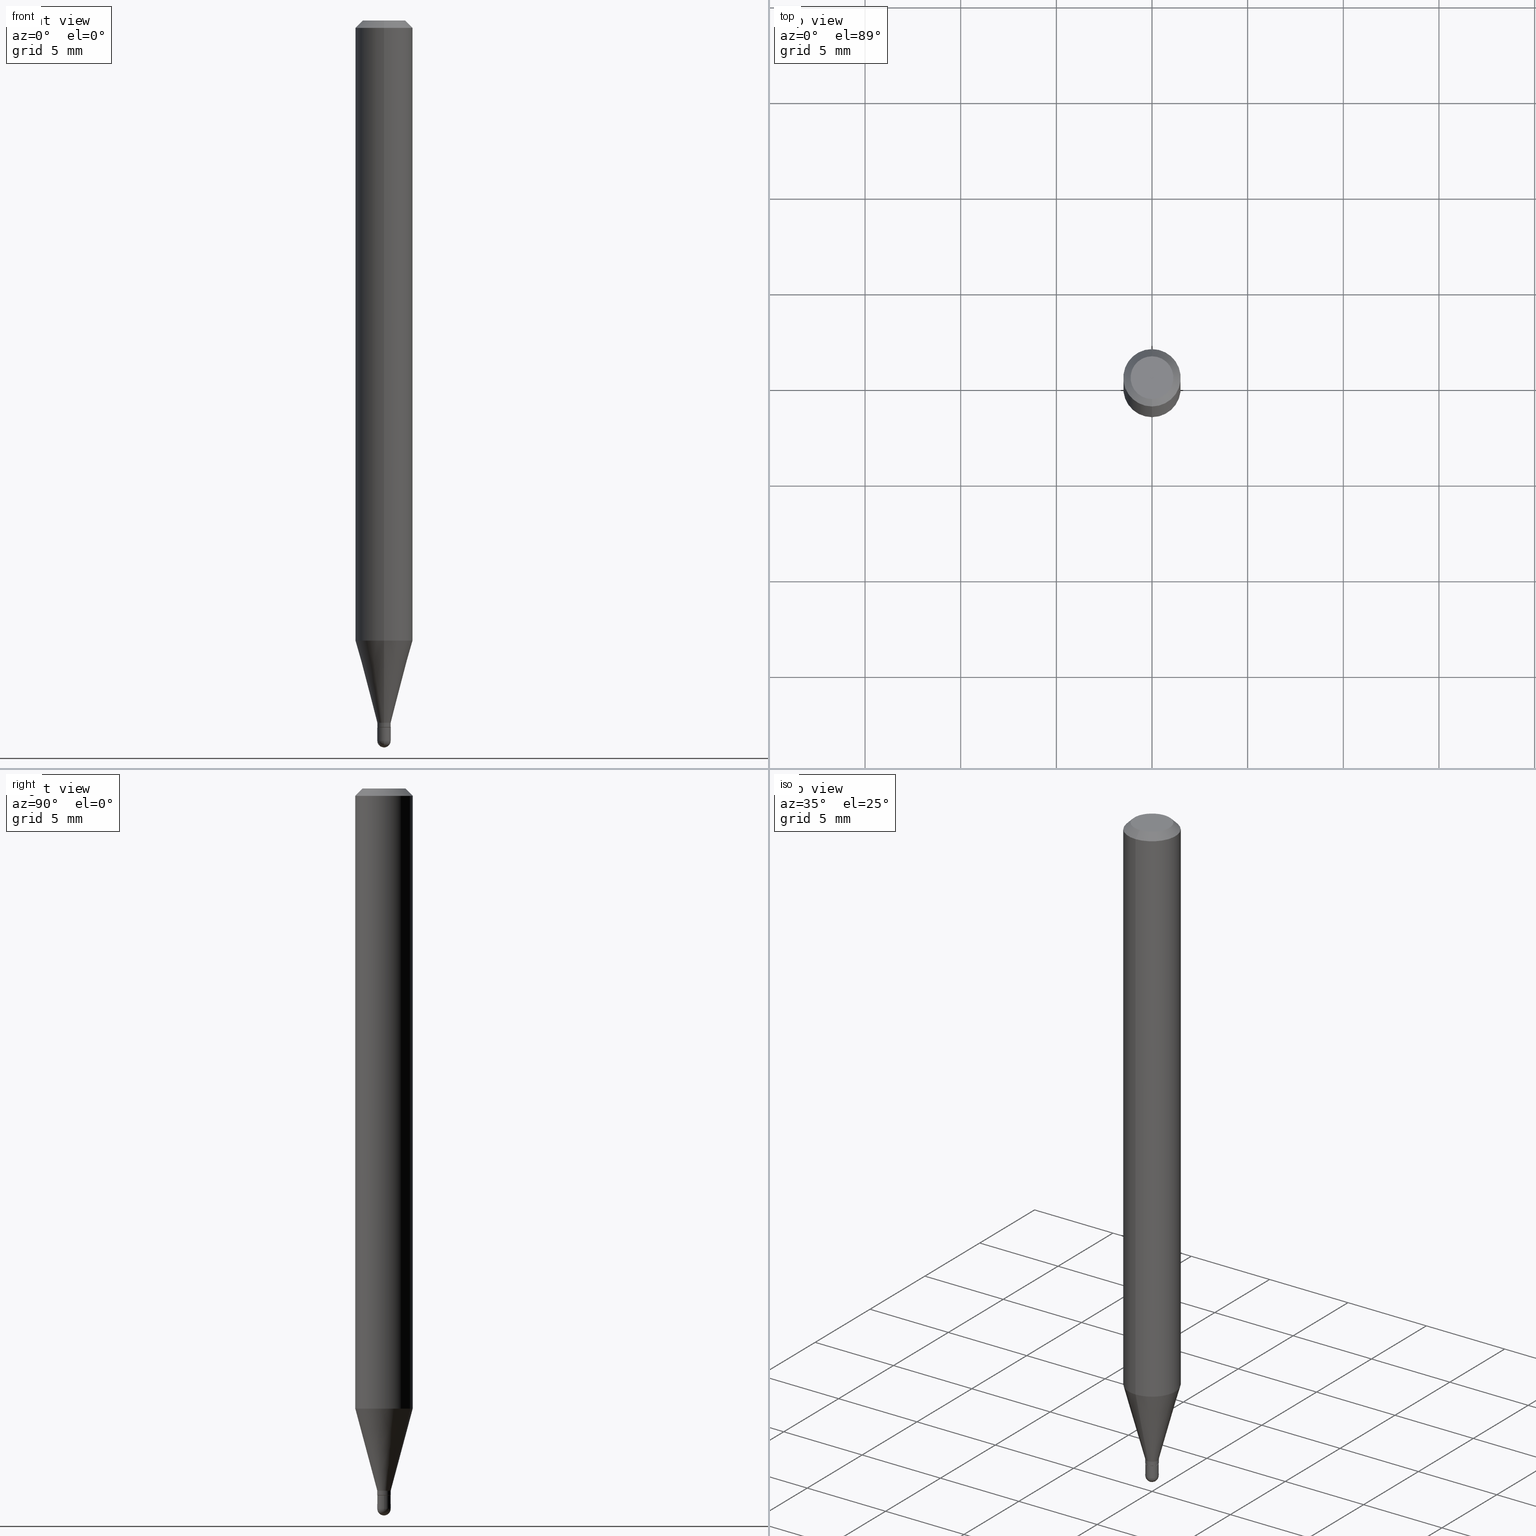
[diagram: canonical four-view strip — front | top / right | iso, engineering-drawing reading convention]
A machine part, canonical four-view strip (front | top / right | iso — engineering-drawing reading convention). The complete STEP part file that produces these views, byte-faithful:
ISO-10303-21;
HEADER;
FILE_DESCRIPTION (( 'STEP AP203' ),
    '1' );
FILE_NAME ('01902.STEP',
    '2024-03-07T19:42:29',
    ( '' ),
    ( '' ),
    'SwSTEP 2.0',
    'SolidWorks 2023',
    '' );
FILE_SCHEMA (( 'CONFIG_CONTROL_DESIGN' ));
ENDSEC;

DATA;
#1 = APPROVAL_ROLE ( '' ) ;
#2 = DIRECTION ( 'NONE',  ( -2.445422202875732962E-29, 3.491548077434707223E-15, 1.000000000000000000 ) ) ;
#3 = ADVANCED_FACE ( 'NONE', ( #165 ), #317, .T. ) ;
#4 = DIRECTION ( 'NONE',  ( -6.982962677686265922E-15, -1.000000000000000000, 0.000000000000000000 ) ) ;
#5 = APPROVAL_STATUS ( 'not_yet_approved' ) ;
#6 = VECTOR ( 'NONE', #117, 39.37007874015748143 ) ;
#7 = ORGANIZATION ( 'UNSPECIFIED', 'UNSPECIFIED', '' ) ;
#8 = DIRECTION ( 'NONE',  ( -2.445422202875732962E-29, 3.491548077434707223E-15, 1.000000000000000000 ) ) ;
#9 = COORDINATED_UNIVERSAL_TIME_OFFSET ( 5, 0, .BEHIND. ) ;
#10 = EDGE_CURVE ( 'NONE', #102, #141, #52, .T. ) ;
#11 = LINE ( 'NONE', #92, #301 ) ;
#12 = CYLINDRICAL_SURFACE ( 'NONE', #282, 0.05904999999999999832 ) ;
#13 = VERTEX_POINT ( 'NONE', #400 ) ;
#14 = VERTEX_POINT ( 'NONE', #50 ) ;
#15 = AXIS2_PLACEMENT_3D ( 'NONE', #177, #326, #291 ) ;
#16 = DIRECTION ( 'NONE',  ( -2.445422202875732962E-29, 3.491548077434707223E-15, 1.000000000000000000 ) ) ;
#17 = VERTEX_POINT ( 'NONE', #466 ) ;
#18 = ORIENTED_EDGE ( 'NONE', *, *, #446, .F. ) ;
#19 = ORIENTED_EDGE ( 'NONE', *, *, #304, .F. ) ;
#20 = VECTOR ( 'NONE', #279, 39.37007874015748143 ) ;
#21 = ORIENTED_EDGE ( 'NONE', *, *, #191, .T. ) ;
#22 = FACE_OUTER_BOUND ( 'NONE', #115, .T. ) ;
#23 = ORIENTED_EDGE ( 'NONE', *, *, #457, .T. ) ;
#24 = DIRECTION ( 'NONE',  ( -6.982962677686265922E-15, -1.000000000000000000, 0.000000000000000000 ) ) ;
#25 = CARTESIAN_POINT ( 'NONE',  ( -9.636488495203459207E-17, -0.01380000000000496801, -1.445099999999999829 ) ) ;
#26 = AXIS2_PLACEMENT_3D ( 'NONE', #417, #299, #338 ) ;
#27 = ADVANCED_FACE ( 'NONE', ( #316 ), #228, .T. ) ;
#28 = FACE_OUTER_BOUND ( 'NONE', #369, .T. ) ;
#29 = ADVANCED_FACE ( 'NONE', ( #167 ), #84, .T. ) ;
#30 = LINE ( 'NONE', #420, #162 ) ;
#31 = ADVANCED_FACE ( 'NONE', ( #170 ), #479, .F. ) ;
#32 = AXIS2_PLACEMENT_3D ( 'NONE', #245, #403, #210 ) ;
#33 = CIRCLE ( 'NONE', #189, 0.01379999999999992344 ) ;
#34 = DIRECTION ( 'NONE',  ( 6.982962677686265922E-15, 1.000000000000000000, -3.505890868245046092E-15 ) ) ;
#35 = ORIENTED_EDGE ( 'NONE', *, *, #380, .T. ) ;
#36 = CARTESIAN_POINT ( 'NONE',  ( -0.01379999999999999977, 9.805489753489382399E-17, -6.788130424551770621E-31 ) ) ;
#37 = PRODUCT ( '01902', '01902', '', ( #85 ) ) ;
#38 = CARTESIAN_POINT ( 'NONE',  ( 3.557600220743616919E-29, -5.079504143052011974E-15, -1.454800000000000093 ) ) ;
#39 = FACE_OUTER_BOUND ( 'NONE', #105, .T. ) ;
#40 = AXIS2_PLACEMENT_3D ( 'NONE', #390, #225, #226 ) ;
#41 = ORIENTED_EDGE ( 'NONE', *, *, #507, .F. ) ;
#42 = COORDINATED_UNIVERSAL_TIME_OFFSET ( 5, 0, .BEHIND. ) ;
#43 = CIRCLE ( 'NONE', #376, 0.01379999999999992344 ) ;
#44 = CARTESIAN_POINT ( 'NONE',  ( 3.557600220743616919E-29, -5.079504143052011974E-15, -1.454800000000000093 ) ) ;
#45 = ORIENTED_EDGE ( 'NONE', *, *, #497, .F. ) ;
#46 = CC_DESIGN_DATE_AND_TIME_ASSIGNMENT ( #325, #89, ( #216 ) ) ;
#47 = APPROVAL_DATE_TIME ( #166, #496 ) ;
#48 = DIRECTION ( 'NONE',  ( -2.445422202875732962E-29, 3.491548077434707223E-15, 1.000000000000000000 ) ) ;
#49 = COORDINATED_UNIVERSAL_TIME_OFFSET ( 5, 0, .BEHIND. ) ;
#50 = CARTESIAN_POINT ( 'NONE',  ( 9.805489753492849690E-17, 0.01379999999999479907, -1.454300000000000148 ) ) ;
#51 = DIRECTION ( 'NONE',  ( -2.445422202875733242E-29, 3.491548077434707223E-15, 1.000000000000000000 ) ) ;
#52 = CIRCLE ( 'NONE', #464, 0.01379999999999986446 ) ;
#53 = LOCAL_TIME ( 14, 42, 29.00000000000000000, #94 ) ;
#54 = DIRECTION ( 'NONE',  ( -6.982962677686265133E-15, -1.000000000000000000, 0.000000000000000000 ) ) ;
#55 = ORIENTED_EDGE ( 'NONE', *, *, #456, .T. ) ;
#56 = ORIENTED_EDGE ( 'NONE', *, *, #310, .T. ) ;
#57 = PERSON_AND_ORGANIZATION_ROLE ( 'design_owner' ) ;
#58 = ORIENTED_EDGE ( 'NONE', *, *, #311, .T. ) ;
#59 = CARTESIAN_POINT ( 'NONE',  ( 3.557600220743616919E-29, -5.079504143052011974E-15, -1.454800000000000093 ) ) ;
#60 = EDGE_LOOP ( 'NONE', ( #365, #368, #487, #295 ) ) ;
#61 = ORIENTED_EDGE ( 'NONE', *, *, #371, .T. ) ;
#62 = DIRECTION ( 'NONE',  ( -6.982962677686265922E-15, -1.000000000000000000, 3.491548077434707617E-15 ) ) ;
#63 = EDGE_CURVE ( 'NONE', #508, #141, #335, .T. ) ;
#64 = CIRCLE ( 'NONE', #339, 0.05904999999999999832 ) ;
#65 = AXIS2_PLACEMENT_3D ( 'NONE', #214, #494, #484 ) ;
#66 = CARTESIAN_POINT ( 'NONE',  ( 3.623738281929160025E-29, -5.177112801150018502E-15, -1.482299999999999951 ) ) ;
#67 = ORIENTED_EDGE ( 'NONE', *, *, #500, .T. ) ;
#68 = AXIS2_PLACEMENT_3D ( 'NONE', #387, #159, #265 ) ;
#69 = ORIENTED_EDGE ( 'NONE', *, *, #63, .T. ) ;
#70 = CARTESIAN_POINT ( 'NONE',  ( 3.623738281929160025E-29, -5.177112801150018502E-15, -1.482299999999999951 ) ) ;
#71 = ORIENTED_EDGE ( 'NONE', *, *, #500, .F. ) ;
#72 = LINE ( 'NONE', #25, #95 ) ;
#73 = EDGE_CURVE ( 'NONE', #508, #444, #349, .T. ) ;
#74 = CC_DESIGN_APPROVAL ( #496, ( #423 ) ) ;
#75 = FACE_OUTER_BOUND ( 'NONE', #149, .T. ) ;
#76 = CC_DESIGN_PERSON_AND_ORGANIZATION_ASSIGNMENT ( #404, #472, ( #150 ) ) ;
#77 = DIRECTION ( 'NONE',  ( -6.982962677686265922E-15, -1.000000000000000000, 3.491548077434707617E-15 ) ) ;
#78 = ADVANCED_FACE ( 'NONE', ( #394 ), #239, .T. ) ;
#79 = AXIS2_PLACEMENT_3D ( 'NONE', #66, #183, #133 ) ;
#80 = CIRCLE ( 'NONE', #119, 0.01329999999999999932 ) ;
#81 = CARTESIAN_POINT ( 'NONE',  ( 3.668133304313604943E-31, -5.237322116152069561E-17, -0.01500000000000002373 ) ) ;
#82 = UNCERTAINTY_MEASURE_WITH_UNIT (LENGTH_MEASURE( 1.000000000000000082E-05 ), #168, 'distance_accuracy_value', 'NONE');
#83 = DIRECTION ( 'NONE',  ( -6.982962677686265922E-15, -1.000000000000000000, 0.000000000000000000 ) ) ;
#84 = CYLINDRICAL_SURFACE ( 'NONE', #236, 0.05904999999999999832 ) ;
#85 = MECHANICAL_CONTEXT ( 'NONE', #101, 'mechanical' ) ;
#86 = CARTESIAN_POINT ( 'NONE',  ( -3.536586717851222218E-16, -0.04404999999999999888, 1.299433897645709742E-16 ) ) ;
#87 = CC_DESIGN_DATE_AND_TIME_ASSIGNMENT ( #202, #437, ( #423 ) ) ;
#88 = AXIS2_PLACEMENT_3D ( 'NONE', #70, #232, #24 ) ;
#89 = DATE_TIME_ROLE ( 'creation_date' ) ;
#90 = VECTOR ( 'NONE', #471, 39.37007874015748143 ) ;
#91 = DIRECTION ( 'NONE',  ( -2.445422202875732962E-29, 3.491548077434707223E-15, 1.000000000000000000 ) ) ;
#92 = CARTESIAN_POINT ( 'NONE',  ( 9.450218385612888028E-17, 0.01329999999999492005, -1.454800000000000093 ) ) ;
#93 = CARTESIAN_POINT ( 'NONE',  ( 3.668133304313604943E-31, -5.237322116152069561E-17, -0.01500000000000002373 ) ) ;
#94 = COORDINATED_UNIVERSAL_TIME_OFFSET ( 5, 0, .BEHIND. ) ;
#95 = VECTOR ( 'NONE', #160, 39.37007874015748143 ) ;
#96 = DIRECTION ( 'NONE',  ( 7.105427357601000281E-15, 1.000000000000000000, 0.000000000000000000 ) ) ;
#97 = LINE ( 'NONE', #372, #463 ) ;
#98 = ORIENTED_EDGE ( 'NONE', *, *, #457, .F. ) ;
#99 = ORIENTED_EDGE ( 'NONE', *, *, #233, .T. ) ;
#100 = EDGE_LOOP ( 'NONE', ( #147, #178, #56, #439 ) ) ;
#101 = APPLICATION_CONTEXT ( 'configuration controlled 3d designs of mechanical parts and assemblies' ) ;
#102 = VERTEX_POINT ( 'NONE', #164 ) ;
#103 = CARTESIAN_POINT ( 'NONE',  ( 3.556377509642178182E-29, -5.077758369013295341E-15, -1.454300000000000148 ) ) ;
#104 = ORIENTED_EDGE ( 'NONE', *, *, #348, .T. ) ;
#105 = EDGE_LOOP ( 'NONE', ( #41, #242, #374, #481 ) ) ;
#106 = CARTESIAN_POINT ( 'NONE',  ( 5.834606941487536772E-46, -8.330590368068735141E-32, -2.385930304642788849E-17 ) ) ;
#107 = CLOSED_SHELL ( 'NONE', ( #346, #286, #137, #289, #475, #143, #29, #488, #416, #260, #78, #231 ) ) ;
#108 = APPROVAL_PERSON_ORGANIZATION ( #345, #496, #440 ) ;
#109 =( LENGTH_UNIT ( ) NAMED_UNIT ( * ) SI_UNIT ( $, .METRE. ) );
#110 = MANIFOLD_SOLID_BREP ( 'Body-Move/Copy2[1]', #309 ) ;
#111 = DIRECTION ( 'NONE',  ( -2.445422202875732962E-29, 3.491548077434707223E-15, 1.000000000000000000 ) ) ;
#112 = DIRECTION ( 'NONE',  ( -2.445422202875732962E-29, 3.491548077434707223E-15, 1.000000000000000000 ) ) ;
#113 = DIRECTION ( 'NONE',  ( -4.851104656540964275E-15, -0.7071067811865500152, -0.7071067811865450192 ) ) ;
#114 = EDGE_LOOP ( 'NONE', ( #45, #486, #322, #146 ) ) ;
#115 = EDGE_LOOP ( 'NONE', ( #61, #58, #211, #229 ) ) ;
#116 = EDGE_LOOP ( 'NONE', ( #427, #290, #453, #361, #302 ) ) ;
#117 = DIRECTION ( 'NONE',  ( -2.445468806185136877E-29, 3.491481338843145188E-15, 1.000000000000000000 ) ) ;
#118 = CONICAL_SURFACE ( 'NONE', #26, 0.05904999999999999832, 0.7853981633974483900 ) ;
#119 = AXIS2_PLACEMENT_3D ( 'NONE', #243, #252, #175 ) ;
#120 = ORIENTED_EDGE ( 'NONE', *, *, #432, .F. ) ;
#121 = CARTESIAN_POINT ( 'NONE',  ( 9.636488495210604561E-17, 0.01379999999999492050, -1.454800000000000093 ) ) ;
#122 = CALENDAR_DATE ( 2024, 7, 3 ) ;
#123 = LINE ( 'NONE', #275, #20 ) ;
#124 = PERSON_AND_ORGANIZATION ( #447, #7 ) ;
#125 = EDGE_LOOP ( 'NONE', ( #120, #378, #104, #251 ) ) ;
#126 = CYLINDRICAL_SURFACE ( 'NONE', #194, 0.01379999999999992344 ) ;
#127 = AXIS2_PLACEMENT_3D ( 'NONE', #344, #91, #161 ) ;
#128 = LOCAL_TIME ( 14, 42, 29.00000000000000000, #480 ) ;
#129 = DATE_AND_TIME ( #122, #281 ) ;
#130 = AXIS2_PLACEMENT_3D ( 'NONE', #59, #333, #54 ) ;
#131 = CARTESIAN_POINT ( 'NONE',  ( 4.195754854663705051E-16, 0.05904999999999994975, -0.01500000000000023016 ) ) ;
#132 = DATE_AND_TIME ( #323, #468 ) ;
#133 = DIRECTION ( 'NONE',  ( -6.982962677686265922E-15, -1.000000000000000000, 0.000000000000000000 ) ) ;
#134 = DIRECTION ( 'NONE',  ( 1.000000000000000000, 0.000000000000000000, 0.000000000000000000 ) ) ;
#135 = CARTESIAN_POINT ( 'NONE',  ( 0.000000000000000000, 0.000000000000000000, 0.000000000000000000 ) ) ;
#136 = EDGE_LOOP ( 'NONE', ( #450, #188, #23, #18 ) ) ;
#137 = ADVANCED_FACE ( 'NONE', ( #203 ), #307, .T. ) ;
#138 = AXIS2_PLACEMENT_3D ( 'NONE', #190, #415, #259 ) ;
#139 = DIRECTION ( 'NONE',  ( 1.000000000000000000, -6.982962677686234367E-15, 0.000000000000000000 ) ) ;
#140 = VERTEX_POINT ( 'NONE', #86 ) ;
#141 = VERTEX_POINT ( 'NONE', #196 ) ;
#142 = ORIENTED_EDGE ( 'NONE', *, *, #10, .F. ) ;
#143 = ADVANCED_FACE ( 'NONE', ( #200 ), #155, .T. ) ;
#144 = EDGE_CURVE ( 'NONE', #492, #14, #300, .T. ) ;
#145 = DIRECTION ( 'NONE',  ( -2.445422202875732962E-29, 3.491548077434707223E-15, 1.000000000000000000 ) ) ;
#146 = ORIENTED_EDGE ( 'NONE', *, *, #465, .F. ) ;
#147 = ORIENTED_EDGE ( 'NONE', *, *, #311, .F. ) ;
#148 = DIRECTION ( 'NONE',  ( -6.982962677686265922E-15, -1.000000000000000000, 0.000000000000000000 ) ) ;
#149 = EDGE_LOOP ( 'NONE', ( #294, #21 ) ) ;
#150 = PRODUCT_DEFINITION_FORMATION_WITH_SPECIFIED_SOURCE ( 'ANY', '', #37, .NOT_KNOWN. ) ;
#151 = DIRECTION ( 'NONE',  ( -6.982962677686265922E-15, -1.000000000000000000, 3.505890868245046092E-15 ) ) ;
#152 = CARTESIAN_POINT ( 'NONE',  ( -9.636488495203469068E-17, -0.01380000000000504781, -1.454300000000000148 ) ) ;
#153 = DIRECTION ( 'NONE',  ( -6.982962677686265922E-15, -1.000000000000000000, 0.000000000000000000 ) ) ;
#154 = EDGE_LOOP ( 'NONE', ( #421, #370, #215, #493 ) ) ;
#155 = CONICAL_SURFACE ( 'NONE', #171, 0.01379999999999992344, 0.2617993877991502960 ) ;
#156 = CIRCLE ( 'NONE', #65, 0.01379999999999999977 ) ;
#157 = DESIGN_CONTEXT ( 'detailed design', #274, 'design' ) ;
#158 = PRODUCT_DEFINITION_SHAPE ( 'NONE', 'NONE',  #216 ) ;
#159 = DIRECTION ( 'NONE',  ( -2.445468806185136597E-29, 3.491481338843145583E-15, 1.000000000000000000 ) ) ;
#160 = DIRECTION ( 'NONE',  ( -1.807323732225330928E-15, -0.2588190451025182970, 0.9659258262890689783 ) ) ;
#161 = DIRECTION ( 'NONE',  ( -6.982962677686265922E-15, -1.000000000000000000, 0.000000000000000000 ) ) ;
#162 = VECTOR ( 'NONE', #113, 39.37007874015748143 ) ;
#163 = CARTESIAN_POINT ( 'NONE',  ( 0.000000000000000000, 0.000000000000000000, 0.000000000000000000 ) ) ;
#164 = CARTESIAN_POINT ( 'NONE',  ( 3.656895686714980623E-29, -5.226140249917465537E-15, -1.496099999999999985 ) ) ;
#165 = FACE_OUTER_BOUND ( 'NONE', #116, .T. ) ;
#166 = DATE_AND_TIME ( #272, #53 ) ;
#167 = FACE_OUTER_BOUND ( 'NONE', #125, .T. ) ;
#168 =( CONVERSION_BASED_UNIT ( 'INCH', #495 ) LENGTH_UNIT ( ) NAMED_UNIT ( #224 ) );
#169 = CC_DESIGN_PERSON_AND_ORGANIZATION_ASSIGNMENT ( #176, #350, ( #216 ) ) ;
#170 = FACE_OUTER_BOUND ( 'NONE', #433, .T. ) ;
#171 = AXIS2_PLACEMENT_3D ( 'NONE', #319, #2, #476 ) ;
#172 = VECTOR ( 'NONE', #379, 39.37007874015748143 ) ;
#173 = CALENDAR_DATE ( 2024, 7, 3 ) ;
#174 = EDGE_CURVE ( 'NONE', #13, #407, #271, .T. ) ;
#175 = DIRECTION ( 'NONE',  ( -6.982962677686265133E-15, -1.000000000000000000, 0.000000000000000000 ) ) ;
#176 = PERSON_AND_ORGANIZATION ( #447, #7 ) ;
#177 = CARTESIAN_POINT ( 'NONE',  ( 0.000000000000000000, 0.000000000000000000, 0.000000000000000000 ) ) ;
#178 = ORIENTED_EDGE ( 'NONE', *, *, #502, .T. ) ;
#179 = DIRECTION ( 'NONE',  ( 1.000000000000000000, -6.982962677686234367E-15, 0.000000000000000000 ) ) ;
#180 = ORIENTED_EDGE ( 'NONE', *, *, #380, .F. ) ;
#181 = CIRCLE ( 'NONE', #209, 0.01379999999999999977 ) ;
#182 = AXIS2_PLACEMENT_3D ( 'NONE', #377, #324, #186 ) ;
#183 = DIRECTION ( 'NONE',  ( 1.000000000000000000, -6.982962677686265922E-15, 4.883557194083112901E-29 ) ) ;
#184 = ORIENTED_EDGE ( 'NONE', *, *, #197, .T. ) ;
#185 = ORIENTED_EDGE ( 'NONE', *, *, #191, .F. ) ;
#186 = DIRECTION ( 'NONE',  ( -6.982962677686265922E-15, -1.000000000000000000, 3.491548077434707223E-15 ) ) ;
#187 = FACE_OUTER_BOUND ( 'NONE', #154, .T. ) ;
#188 = ORIENTED_EDGE ( 'NONE', *, *, #256, .T. ) ;
#189 = AXIS2_PLACEMENT_3D ( 'NONE', #103, #16, #148 ) ;
#190 = CARTESIAN_POINT ( 'NONE',  ( 3.624918411408227122E-29, -5.175422788567193795E-15, -1.482299999999999729 ) ) ;
#191 = EDGE_CURVE ( 'NONE', #140, #213, #258, .T. ) ;
#192 = CARTESIAN_POINT ( 'NONE',  ( 3.075995059520799729E-16, 0.04404999999999999888, -1.657323443342127900E-16 ) ) ;
#193 = DIRECTION ( 'NONE',  ( -2.445422202875732962E-29, 3.491548077434707223E-15, 1.000000000000000000 ) ) ;
#194 = AXIS2_PLACEMENT_3D ( 'NONE', #234, #473, #241 ) ;
#195 = AXIS2_PLACEMENT_3D ( 'NONE', #44, #343, #512 ) ;
#196 = CARTESIAN_POINT ( 'NONE',  ( 9.805489753492956925E-17, 0.01379999999999475396, -1.482299999999999729 ) ) ;
#197 = EDGE_CURVE ( 'NONE', #328, #250, #278, .T. ) ;
#198 = DIRECTION ( 'NONE',  ( -6.982962677686265133E-15, -1.000000000000000000, 3.491548077434707617E-15 ) ) ;
#199 = CARTESIAN_POINT ( 'NONE',  ( 9.805489753489326933E-17, 0.01379999999999992344, -4.818336346859869582E-17 ) ) ;
#200 = FACE_OUTER_BOUND ( 'NONE', #136, .T. ) ;
#201 = CC_DESIGN_APPROVAL ( #248, ( #216 ) ) ;
#202 = DATE_AND_TIME ( #173, #478 ) ;
#203 = FACE_OUTER_BOUND ( 'NONE', #293, .T. ) ;
#204 = EDGE_LOOP ( 'NONE', ( #184, #99, #71, #98 ) ) ;
#205 = DIRECTION ( 'NONE',  ( 1.000000000000000000, -6.982962677686267499E-15, 4.876176775795936353E-29 ) ) ;
#206 = APPROVAL_DATE_TIME ( #132, #356 ) ;
#207 = CARTESIAN_POINT ( 'NONE',  ( -4.123439461173428234E-16, -0.05905000000000445309, -1.276224700957508285 ) ) ;
#208 = AXIS2_PLACEMENT_3D ( 'NONE', #354, #436, #362 ) ;
#209 = AXIS2_PLACEMENT_3D ( 'NONE', #358, #443, #139 ) ;
#210 = DIRECTION ( 'NONE',  ( 1.000000000000000000, -6.982962677686234367E-15, 0.000000000000000000 ) ) ;
#211 = ORIENTED_EDGE ( 'NONE', *, *, #144, .F. ) ;
#212 = EDGE_CURVE ( 'NONE', #213, #296, #509, .T. ) ;
#213 = VERTEX_POINT ( 'NONE', #426 ) ;
#214 = CARTESIAN_POINT ( 'NONE',  ( 3.624918411408227122E-29, -5.175422788567193795E-15, -1.482299999999999729 ) ) ;
#215 = ORIENTED_EDGE ( 'NONE', *, *, #212, .T. ) ;
#216 = PRODUCT_DEFINITION ( 'UNKNOWN', '', #150, #157 ) ;
#217 = CYLINDRICAL_SURFACE ( 'NONE', #15, 0.01379999999999992344 ) ;
#218 = AXIS2_PLACEMENT_3D ( 'NONE', #389, #506, #4 ) ;
#219 = VECTOR ( 'NONE', #385, 39.37007874015748143 ) ;
#220 = CARTESIAN_POINT ( 'NONE',  ( 3.557668019238137054E-29, -5.079407051749007943E-15, -1.454800000000000093 ) ) ;
#221 = CARTESIAN_POINT ( 'NONE',  ( 0.01379999999999999977, -5.175771936701078096E-15, -1.454800000000000093 ) ) ;
#222 = PLANE ( 'NONE',  #263 ) ;
#223 = CIRCLE ( 'NONE', #138, 0.01379999999999999977 ) ;
#224 = DIMENSIONAL_EXPONENTS ( 1.000000000000000000, 0.000000000000000000, 0.000000000000000000, 0.000000000000000000, 0.000000000000000000, 0.000000000000000000, 0.000000000000000000 ) ;
#225 = DIRECTION ( 'NONE',  ( -2.445422202875732962E-29, 3.491548077434707223E-15, 1.000000000000000000 ) ) ;
#226 = DIRECTION ( 'NONE',  ( -6.982962677686265922E-15, -1.000000000000000000, 4.626330217890369336E-15 ) ) ;
#227 = AXIS2_PLACEMENT_3D ( 'NONE', #418, #112, #303 ) ;
#228 = CYLINDRICAL_SURFACE ( 'NONE', #413, 0.01379999999999999977 ) ;
#229 = ORIENTED_EDGE ( 'NONE', *, *, #310, .F. ) ;
#230 = CARTESIAN_POINT ( 'NONE',  ( 0.01379999999999999977, -9.636488495207048524E-17, 6.729123950598392144E-31 ) ) ;
#231 = ADVANCED_FACE ( 'NONE', ( #39 ), #126, .T. ) ;
#232 = DIRECTION ( 'NONE',  ( -1.000000000000000000, 6.982962677686265922E-15, -4.883557194083112340E-29 ) ) ;
#233 = EDGE_CURVE ( 'NONE', #250, #388, #123, .T. ) ;
#234 = CARTESIAN_POINT ( 'NONE',  ( 0.000000000000000000, 0.000000000000000000, 0.000000000000000000 ) ) ;
#235 = PERSON_AND_ORGANIZATION_ROLE ( 'design_supplier' ) ;
#236 = AXIS2_PLACEMENT_3D ( 'NONE', #351, #424, #77 ) ;
#237 = CARTESIAN_POINT ( 'NONE',  ( 0.000000000000000000, 0.000000000000000000, 0.000000000000000000 ) ) ;
#238 = CIRCLE ( 'NONE', #347, 0.05904999999999999832 ) ;
#239 = CONICAL_SURFACE ( 'NONE', #195, 0.01329999999999999932, 0.7853981633974739252 ) ;
#240 = APPROVAL_ROLE ( '' ) ;
#241 = DIRECTION ( 'NONE',  ( -6.982962677686265922E-15, -1.000000000000000000, 3.491548077434707617E-15 ) ) ;
#242 = ORIENTED_EDGE ( 'NONE', *, *, #386, .T. ) ;
#243 = CARTESIAN_POINT ( 'NONE',  ( 3.557600220743616919E-29, -5.079504143052011974E-15, -1.454800000000000093 ) ) ;
#244 = PERSON_AND_ORGANIZATION ( #447, #7 ) ;
#245 = CARTESIAN_POINT ( 'NONE',  ( 3.557668019238137054E-29, -5.079407051749007943E-15, -1.454800000000000093 ) ) ;
#246 = CIRCLE ( 'NONE', #227, 0.05904999999999999832 ) ;
#247 = CALENDAR_DATE ( 2024, 7, 3 ) ;
#248 = APPROVAL ( #285, 'UNSPECIFIED' ) ;
#249 = DIRECTION ( 'NONE',  ( -2.445468806185136597E-29, 3.491481338843145583E-15, 1.000000000000000000 ) ) ;
#250 = VERTEX_POINT ( 'NONE', #428 ) ;
#251 = ORIENTED_EDGE ( 'NONE', *, *, #280, .F. ) ;
#252 = DIRECTION ( 'NONE',  ( -2.445422202875732962E-29, 3.491548077434707223E-15, 1.000000000000000000 ) ) ;
#253 = ORIENTED_EDGE ( 'NONE', *, *, #497, .T. ) ;
#254 = LINE ( 'NONE', #491, #336 ) ;
#255 = MANIFOLD_SOLID_BREP ( 'Body-Move/Copy2[2]', #107 ) ;
#256 = EDGE_CURVE ( 'NONE', #250, #328, #43, .T. ) ;
#257 = CIRCLE ( 'NONE', #40, 0.05904999999999999832 ) ;
#258 = CIRCLE ( 'NONE', #504, 0.04404999999999999888 ) ;
#259 = DIRECTION ( 'NONE',  ( 1.000000000000000000, -6.982962677686234367E-15, 0.000000000000000000 ) ) ;
#260 = ADVANCED_FACE ( 'NONE', ( #331 ), #401, .F. ) ;
#261 = LINE ( 'NONE', #460, #172 ) ;
#262 = EDGE_LOOP ( 'NONE', ( #366, #451 ) ) ;
#263 = AXIS2_PLACEMENT_3D ( 'NONE', #192, #503, #381 ) ;
#264 = SPHERICAL_SURFACE ( 'NONE', #359, 0.01379999999999986446 ) ;
#265 = DIRECTION ( 'NONE',  ( 1.000000000000000000, -6.982962677686234367E-15, 0.000000000000000000 ) ) ;
#266 = ADVANCED_FACE ( 'NONE', ( #408 ), #482, .T. ) ;
#267 = VECTOR ( 'NONE', #269, 39.37007874015748143 ) ;
#268 = VECTOR ( 'NONE', #405, 39.37007874015748143 ) ;
#269 = DIRECTION ( 'NONE',  ( -2.445468806185136877E-29, 3.491481338843145188E-15, 1.000000000000000000 ) ) ;
#270 = CARTESIAN_POINT ( 'NONE',  ( -0.01379999999999999977, -5.029360022623207193E-15, -1.454800000000000093 ) ) ;
#271 = LINE ( 'NONE', #36, #267 ) ;
#272 = CALENDAR_DATE ( 2024, 7, 3 ) ;
#273 = ORIENTED_EDGE ( 'NONE', *, *, #432, .T. ) ;
#274 = APPLICATION_CONTEXT ( 'configuration controlled 3d designs of mechanical parts and assemblies' ) ;
#275 = CARTESIAN_POINT ( 'NONE',  ( 9.805489753492859550E-17, 0.01379999999999487886, -1.445099999999999829 ) ) ;
#276 = APPROVAL_STATUS ( 'not_yet_approved' ) ;
#277 = EDGE_CURVE ( 'NONE', #407, #444, #429, .T. ) ;
#278 = CIRCLE ( 'NONE', #127, 0.01379999999999992344 ) ;
#279 = DIRECTION ( 'NONE',  ( 1.839019923739601104E-15, 0.2588190451025250693, 0.9659258262890670910 ) ) ;
#280 = EDGE_CURVE ( 'NONE', #296, #411, #64, .T. ) ;
#281 = LOCAL_TIME ( 14, 42, 29.00000000000000000, #9 ) ;
#282 = AXIS2_PLACEMENT_3D ( 'NONE', #135, #412, #62 ) ;
#283 = APPROVAL_DATE_TIME ( #129, #248 ) ;
#284 = FACE_OUTER_BOUND ( 'NONE', #485, .T. ) ;
#285 = APPROVAL_STATUS ( 'not_yet_approved' ) ;
#286 = ADVANCED_FACE ( 'NONE', ( #22 ), #341, .T. ) ;
#287 = DIRECTION ( 'NONE',  ( 5.024295867788190974E-15, 0.7071067811865681119, 0.7071067811865270336 ) ) ;
#288 = PERSON_AND_ORGANIZATION ( #447, #7 ) ;
#289 = ADVANCED_FACE ( 'NONE', ( #284 ), #12, .T. ) ;
#290 = ORIENTED_EDGE ( 'NONE', *, *, #342, .T. ) ;
#291 = DIRECTION ( 'NONE',  ( -6.982962677686265922E-15, -1.000000000000000000, 3.491548077434707617E-15 ) ) ;
#292 = ORIENTED_EDGE ( 'NONE', *, *, #342, .F. ) ;
#293 = EDGE_LOOP ( 'NONE', ( #185, #55, #459, #332 ) ) ;
#294 = ORIENTED_EDGE ( 'NONE', *, *, #340, .T. ) ;
#295 = ORIENTED_EDGE ( 'NONE', *, *, #384, .F. ) ;
#296 = VERTEX_POINT ( 'NONE', #131 ) ;
#297 = DIRECTION ( 'NONE',  ( -6.982962677686265922E-15, -1.000000000000000000, 3.505890868245046092E-15 ) ) ;
#298 = CC_DESIGN_PERSON_AND_ORGANIZATION_ASSIGNMENT ( #244, #393, ( #423 ) ) ;
#299 = DIRECTION ( 'NONE',  ( 2.445422202875732962E-29, -3.491548077434707223E-15, -1.000000000000000000 ) ) ;
#300 = CIRCLE ( 'NONE', #218, 0.01379999999999992344 ) ;
#301 = VECTOR ( 'NONE', #287, 39.37007874015748143 ) ;
#302 = ORIENTED_EDGE ( 'NONE', *, *, #277, .F. ) ;
#303 = DIRECTION ( 'NONE',  ( -6.982962677686265922E-15, -1.000000000000000000, 4.626330217890369336E-15 ) ) ;
#304 = EDGE_CURVE ( 'NONE', #444, #407, #477, .T. ) ;
#305 = CARTESIAN_POINT ( 'NONE',  ( -4.123439461173736383E-16, -0.05905000000000005383, -0.01499999999999981730 ) ) ;
#306 = CARTESIAN_POINT ( 'NONE',  ( 3.668133304313604943E-31, -5.237322116152069561E-17, -0.01500000000000002373 ) ) ;
#307 = CONICAL_SURFACE ( 'NONE', #330, 0.05904999999999999832, 0.7853981633974483900 ) ;
#308 = AXIS2_PLACEMENT_3D ( 'NONE', #106, #8, #363 ) ;
#309 = CLOSED_SHELL ( 'NONE', ( #27, #266, #31, #399, #3 ) ) ;
#310 = EDGE_CURVE ( 'NONE', #17, #492, #434, .T. ) ;
#311 = EDGE_CURVE ( 'NONE', #505, #14, #11, .T. ) ;
#312 = DIRECTION ( 'NONE',  ( -2.445422202875732962E-29, 3.491548077434707223E-15, 1.000000000000000000 ) ) ;
#313 =( GEOMETRIC_REPRESENTATION_CONTEXT ( 3 ) GLOBAL_UNCERTAINTY_ASSIGNED_CONTEXT ( ( #82 ) ) GLOBAL_UNIT_ASSIGNED_CONTEXT ( ( #168, #396, #352 ) ) REPRESENTATION_CONTEXT ( 'NONE', 'WORKASPACE' ) );
#314 = CARTESIAN_POINT ( 'NONE',  ( 4.123439461173743285E-16, 0.05904999999999994975, -0.01500000000000023016 ) ) ;
#315 = APPLICATION_PROTOCOL_DEFINITION ( 'international standard', 'config_control_design', 1994, #101 ) ;
#316 = FACE_OUTER_BOUND ( 'NONE', #511, .T. ) ;
#317 = CYLINDRICAL_SURFACE ( 'NONE', #208, 0.01379999999999999977 ) ;
#318 = SHAPE_DEFINITION_REPRESENTATION ( #158, #435 ) ;
#319 = CARTESIAN_POINT ( 'NONE',  ( 3.533879625375720671E-29, -5.045636126700895725E-15, -1.445099999999999829 ) ) ;
#320 = CARTESIAN_POINT ( 'NONE',  ( 5.834606941487536772E-46, -8.330590368068735141E-32, -2.385930304642788849E-17 ) ) ;
#321 = AXIS2_PLACEMENT_3D ( 'NONE', #38, #193, #383 ) ;
#322 = ORIENTED_EDGE ( 'NONE', *, *, #63, .F. ) ;
#323 = CALENDAR_DATE ( 2024, 7, 3 ) ;
#324 = DIRECTION ( 'NONE',  ( -2.445422202875732682E-29, 3.491548077434707223E-15, 1.000000000000000000 ) ) ;
#325 = DATE_AND_TIME ( #247, #128 ) ;
#326 = DIRECTION ( 'NONE',  ( -2.445422202875732962E-29, 3.491548077434707223E-15, 1.000000000000000000 ) ) ;
#327 = DIRECTION ( 'NONE',  ( -6.982962677686265922E-15, -1.000000000000000000, 0.000000000000000000 ) ) ;
#328 = VERTEX_POINT ( 'NONE', #438 ) ;
#329 = ORIENTED_EDGE ( 'NONE', *, *, #304, .T. ) ;
#330 = AXIS2_PLACEMENT_3D ( 'NONE', #81, #431, #34 ) ;
#331 = FACE_OUTER_BOUND ( 'NONE', #262, .T. ) ;
#332 = ORIENTED_EDGE ( 'NONE', *, *, #212, .F. ) ;
#333 = DIRECTION ( 'NONE',  ( -2.445422202875732962E-29, 3.491548077434707223E-15, 1.000000000000000000 ) ) ;
#334 = CARTESIAN_POINT ( 'NONE',  ( 4.195754854663701599E-16, 0.05904999999999552274, -1.276224700957508729 ) ) ;
#335 = CIRCLE ( 'NONE', #68, 0.01379999999999999977 ) ;
#336 = VECTOR ( 'NONE', #51, 39.37007874015748143 ) ;
#337 = CARTESIAN_POINT ( 'NONE',  ( -9.636488495203375390E-17, -0.01380000000000511026, -1.482299999999999729 ) ) ;
#338 = DIRECTION ( 'NONE',  ( 6.982962677686265922E-15, 1.000000000000000000, -3.505890868245046092E-15 ) ) ;
#339 = AXIS2_PLACEMENT_3D ( 'NONE', #93, #145, #297 ) ;
#340 = EDGE_CURVE ( 'NONE', #213, #140, #375, .T. ) ;
#341 = CONICAL_SURFACE ( 'NONE', #130, 0.01329999999999999932, 0.7853981633974739252 ) ;
#342 = EDGE_CURVE ( 'NONE', #13, #470, #156, .T. ) ;
#343 = DIRECTION ( 'NONE',  ( -2.445422202875732962E-29, 3.491548077434707223E-15, 1.000000000000000000 ) ) ;
#344 = CARTESIAN_POINT ( 'NONE',  ( 3.533879625375720671E-29, -5.045636126700895725E-15, -1.445099999999999829 ) ) ;
#345 = PERSON_AND_ORGANIZATION ( #447, #7 ) ;
#346 = ADVANCED_FACE ( 'NONE', ( #367 ), #217, .T. ) ;
#347 = AXIS2_PLACEMENT_3D ( 'NONE', #306, #498, #151 ) ;
#348 = EDGE_CURVE ( 'NONE', #364, #411, #254, .T. ) ;
#349 = LINE ( 'NONE', #230, #6 ) ;
#350 = PERSON_AND_ORGANIZATION_ROLE ( 'creator' ) ;
#351 = CARTESIAN_POINT ( 'NONE',  ( 0.000000000000000000, 0.000000000000000000, 0.000000000000000000 ) ) ;
#352 =( NAMED_UNIT ( * ) SI_UNIT ( $, .STERADIAN. ) SOLID_ANGLE_UNIT ( ) );
#353 = DIRECTION ( 'NONE',  ( 2.438088387897960049E-29, -3.491481338843145188E-15, -1.000000000000000000 ) ) ;
#354 = CARTESIAN_POINT ( 'NONE',  ( 0.000000000000000000, 0.000000000000000000, 0.000000000000000000 ) ) ;
#355 = SECURITY_CLASSIFICATION_LEVEL ( 'unclassified' ) ;
#356 = APPROVAL ( #276, 'UNSPECIFIED' ) ;
#357 = AXIS2_PLACEMENT_3D ( 'NONE', #220, #249, #179 ) ;
#358 = CARTESIAN_POINT ( 'NONE',  ( 3.624918411408227122E-29, -5.175422788567193795E-15, -1.482299999999999729 ) ) ;
#359 = AXIS2_PLACEMENT_3D ( 'NONE', #469, #425, #153 ) ;
#360 = APPLICATION_PROTOCOL_DEFINITION ( 'international standard', 'config_control_design', 1994, #274 ) ;
#361 = ORIENTED_EDGE ( 'NONE', *, *, #73, .T. ) ;
#362 = DIRECTION ( 'NONE',  ( 1.000000000000000000, -6.982962677686267499E-15, 4.876176775795936353E-29 ) ) ;
#363 = DIRECTION ( 'NONE',  ( -6.982962677686265133E-15, -1.000000000000000000, 3.491548077434707617E-15 ) ) ;
#364 = VERTEX_POINT ( 'NONE', #207 ) ;
#365 = ORIENTED_EDGE ( 'NONE', *, *, #144, .T. ) ;
#366 = ORIENTED_EDGE ( 'NONE', *, *, #371, .F. ) ;
#367 = FACE_OUTER_BOUND ( 'NONE', #60, .T. ) ;
#368 = ORIENTED_EDGE ( 'NONE', *, *, #507, .T. ) ;
#369 = EDGE_LOOP ( 'NONE', ( #142, #253, #292, #180 ) ) ;
#370 = ORIENTED_EDGE ( 'NONE', *, *, #340, .F. ) ;
#371 = EDGE_CURVE ( 'NONE', #17, #505, #80, .T. ) ;
#372 = CARTESIAN_POINT ( 'NONE',  ( -9.636488495206993057E-17, -0.01379999999999992344, 4.818336346859869582E-17 ) ) ;
#373 = ORIENTED_EDGE ( 'NONE', *, *, #277, .T. ) ;
#374 = ORIENTED_EDGE ( 'NONE', *, *, #384, .T. ) ;
#375 = CIRCLE ( 'NONE', #308, 0.04404999999999999888 ) ;
#376 = AXIS2_PLACEMENT_3D ( 'NONE', #397, #48, #327 ) ;
#377 = CARTESIAN_POINT ( 'NONE',  ( 3.557600220743616919E-29, -5.079504143052011974E-15, -1.454800000000000093 ) ) ;
#378 = ORIENTED_EDGE ( 'NONE', *, *, #446, .T. ) ;
#379 = DIRECTION ( 'NONE',  ( -2.445422202875733242E-29, 3.491548077434707223E-15, 1.000000000000000000 ) ) ;
#380 = EDGE_CURVE ( 'NONE', #141, #13, #181, .T. ) ;
#381 = DIRECTION ( 'NONE',  ( 6.982962677686265922E-15, 1.000000000000000000, -3.491548077434707223E-15 ) ) ;
#382 = APPROVAL_PERSON_ORGANIZATION ( #398, #248, #240 ) ;
#383 = DIRECTION ( 'NONE',  ( -6.982962677686265133E-15, -1.000000000000000000, 0.000000000000000000 ) ) ;
#384 = EDGE_CURVE ( 'NONE', #492, #328, #97, .T. ) ;
#385 = DIRECTION ( 'NONE',  ( -2.445422202875733242E-29, 3.491548077434707223E-15, 1.000000000000000000 ) ) ;
#386 = EDGE_CURVE ( 'NONE', #14, #492, #33, .T. ) ;
#387 = CARTESIAN_POINT ( 'NONE',  ( 3.624918411408227122E-29, -5.175422788567193795E-15, -1.482299999999999729 ) ) ;
#388 = VERTEX_POINT ( 'NONE', #334 ) ;
#389 = CARTESIAN_POINT ( 'NONE',  ( 3.556377509642178182E-29, -5.077758369013295341E-15, -1.454300000000000148 ) ) ;
#390 = CARTESIAN_POINT ( 'NONE',  ( 3.120908219579933715E-29, -4.455999901002872408E-15, -1.276224700957508507 ) ) ;
#391 = DIRECTION ( 'NONE',  ( -1.000000000000000000, 6.982962677686265922E-15, -4.876176775795935793E-29 ) ) ;
#392 = CC_DESIGN_PERSON_AND_ORGANIZATION_ASSIGNMENT ( #288, #57, ( #37 ) ) ;
#393 = PERSON_AND_ORGANIZATION_ROLE ( 'classification_officer' ) ;
#394 = FACE_OUTER_BOUND ( 'NONE', #100, .T. ) ;
#395 = AXIS2_PLACEMENT_3D ( 'NONE', #121, #353, #391 ) ;
#396 =( NAMED_UNIT ( * ) PLANE_ANGLE_UNIT ( ) SI_UNIT ( $, .RADIAN. ) );
#397 = CARTESIAN_POINT ( 'NONE',  ( 3.533879625375720671E-29, -5.045636126700895725E-15, -1.445099999999999829 ) ) ;
#398 = PERSON_AND_ORGANIZATION ( #447, #7 ) ;
#399 = ADVANCED_FACE ( 'NONE', ( #28 ), #264, .T. ) ;
#400 = CARTESIAN_POINT ( 'NONE',  ( -0.01379999999999999977, -5.029360022623207193E-15, -1.482299999999999729 ) ) ;
#401 = PLANE ( 'NONE',  #182 ) ;
#402 = AXIS2_PLACEMENT_3D ( 'NONE', #163, #474, #134 ) ;
#403 = DIRECTION ( 'NONE',  ( -2.445468806185136597E-29, 3.491481338843145583E-15, 1.000000000000000000 ) ) ;
#404 = PERSON_AND_ORGANIZATION ( #447, #7 ) ;
#405 = DIRECTION ( 'NONE',  ( -4.937700262164674260E-15, -0.7071067811865632269, 0.7071067811865319186 ) ) ;
#406 = ORIENTED_EDGE ( 'NONE', *, *, #174, .T. ) ;
#407 = VERTEX_POINT ( 'NONE', #270 ) ;
#408 = FACE_OUTER_BOUND ( 'NONE', #114, .T. ) ;
#409 = ORIENTED_EDGE ( 'NONE', *, *, #462, .F. ) ;
#410 = PRODUCT_RELATED_PRODUCT_CATEGORY ( 'detail', '', ( #37 ) ) ;
#411 = VERTEX_POINT ( 'NONE', #305 ) ;
#412 = DIRECTION ( 'NONE',  ( -2.445422202875732962E-29, 3.491548077434707223E-15, 1.000000000000000000 ) ) ;
#413 = AXIS2_PLACEMENT_3D ( 'NONE', #237, #422, #205 ) ;
#414 = APPROVAL_PERSON_ORGANIZATION ( #124, #356, #1 ) ;
#415 = DIRECTION ( 'NONE',  ( -2.445468806185136597E-29, 3.491481338843145583E-15, 1.000000000000000000 ) ) ;
#416 = ADVANCED_FACE ( 'NONE', ( #75 ), #222, .F. ) ;
#417 = CARTESIAN_POINT ( 'NONE',  ( 3.668133304313604943E-31, -5.237322116152069561E-17, -0.01500000000000002373 ) ) ;
#418 = CARTESIAN_POINT ( 'NONE',  ( 3.120908219579933715E-29, -4.455999901002872408E-15, -1.276224700957508507 ) ) ;
#419 = AXIS2_PLACEMENT_3D ( 'NONE', #499, #111, #83 ) ;
#420 = CARTESIAN_POINT ( 'NONE',  ( -4.051124067684085231E-16, -0.05905000000000005383, -0.01499999999999981730 ) ) ;
#421 = ORIENTED_EDGE ( 'NONE', *, *, #456, .F. ) ;
#422 = DIRECTION ( 'NONE',  ( -2.445468806185136597E-29, 3.491481338843145583E-15, 1.000000000000000000 ) ) ;
#423 = SECURITY_CLASSIFICATION ( '', '', #355 ) ;
#424 = DIRECTION ( 'NONE',  ( -2.445422202875732962E-29, 3.491548077434707223E-15, 1.000000000000000000 ) ) ;
#425 = DIRECTION ( 'NONE',  ( 1.000000000000000000, -6.982962677686265922E-15, 4.883557194083112901E-29 ) ) ;
#426 = CARTESIAN_POINT ( 'NONE',  ( 3.599717260347271507E-16, 0.04404999999999999888, -1.776619958574267697E-16 ) ) ;
#427 = ORIENTED_EDGE ( 'NONE', *, *, #174, .F. ) ;
#428 = CARTESIAN_POINT ( 'NONE',  ( 2.588151915006495688E-16, 0.01379999999999487886, -1.445099999999999829 ) ) ;
#429 = CIRCLE ( 'NONE', #357, 0.01379999999999999977 ) ;
#430 = CONICAL_SURFACE ( 'NONE', #419, 0.01379999999999992344, 0.2617993877991502960 ) ;
#431 = DIRECTION ( 'NONE',  ( 2.445422202875732962E-29, -3.491548077434707223E-15, -1.000000000000000000 ) ) ;
#432 = EDGE_CURVE ( 'NONE', #388, #296, #261, .T. ) ;
#433 = EDGE_LOOP ( 'NONE', ( #329, #373 ) ) ;
#434 = LINE ( 'NONE', #452, #268 ) ;
#435 = ADVANCED_BREP_SHAPE_REPRESENTATION ( '01902', ( #110, #255, #402 ), #313 ) ;
#436 = DIRECTION ( 'NONE',  ( -2.445468806185136597E-29, 3.491481338843145583E-15, 1.000000000000000000 ) ) ;
#437 = DATE_TIME_ROLE ( 'classification_date' ) ;
#438 = CARTESIAN_POINT ( 'NONE',  ( -9.636488495203459207E-17, -0.01380000000000496801, -1.445099999999999829 ) ) ;
#439 = ORIENTED_EDGE ( 'NONE', *, *, #386, .F. ) ;
#440 = APPROVAL_ROLE ( '' ) ;
#441 = CC_DESIGN_APPROVAL ( #356, ( #150 ) ) ;
#442 = DIRECTION ( 'NONE',  ( 1.000000000000000000, -7.105427357601001070E-15, 4.926315508542082329E-29 ) ) ;
#443 = DIRECTION ( 'NONE',  ( -2.445468806185136597E-29, 3.491481338843145583E-15, 1.000000000000000000 ) ) ;
#444 = VERTEX_POINT ( 'NONE', #221 ) ;
#445 = ORIENTED_EDGE ( 'NONE', *, *, #348, .F. ) ;
#446 = EDGE_CURVE ( 'NONE', #388, #364, #246, .T. ) ;
#447 = PERSON ( 'UNSPECIFIED', 'UNSPECIFIED', 'UNSPECIFIED', ('UNSPECIFIED'), ('UNSPECIFIED'), ('UNSPECIFIED') ) ;
#448 = DIRECTION ( 'NONE',  ( -2.445422202875733242E-29, 3.491548077434707223E-15, 1.000000000000000000 ) ) ;
#449 = ORIENTED_EDGE ( 'NONE', *, *, #73, .F. ) ;
#450 = ORIENTED_EDGE ( 'NONE', *, *, #233, .F. ) ;
#451 = ORIENTED_EDGE ( 'NONE', *, *, #502, .F. ) ;
#452 = CARTESIAN_POINT ( 'NONE',  ( -9.287340361319174517E-17, -0.01330000000000507859, -1.454800000000000093 ) ) ;
#453 = ORIENTED_EDGE ( 'NONE', *, *, #465, .T. ) ;
#454 = CARTESIAN_POINT ( 'NONE',  ( 9.627854069552884882E-17, 0.01329999999999492005, -1.454800000000000093 ) ) ;
#455 = CIRCLE ( 'NONE', #88, 0.01379999999999986446 ) ;
#456 = EDGE_CURVE ( 'NONE', #140, #411, #30, .T. ) ;
#457 = EDGE_CURVE ( 'NONE', #328, #364, #72, .T. ) ;
#458 = FACE_OUTER_BOUND ( 'NONE', #204, .T. ) ;
#459 = ORIENTED_EDGE ( 'NONE', *, *, #462, .T. ) ;
#460 = CARTESIAN_POINT ( 'NONE',  ( 4.195754854663390985E-16, 0.05904999999999999832, -2.061759139725194689E-16 ) ) ;
#461 = LINE ( 'NONE', #199, #219 ) ;
#462 = EDGE_CURVE ( 'NONE', #411, #296, #238, .T. ) ;
#463 = VECTOR ( 'NONE', #448, 39.37007874015748143 ) ;
#464 = AXIS2_PLACEMENT_3D ( 'NONE', #490, #442, #96 ) ;
#465 = EDGE_CURVE ( 'NONE', #470, #508, #223, .T. ) ;
#466 = CARTESIAN_POINT ( 'NONE',  ( -9.287340361319174517E-17, -0.01330000000000507859, -1.454800000000000093 ) ) ;
#467 = CC_DESIGN_PERSON_AND_ORGANIZATION_ASSIGNMENT ( #483, #235, ( #150 ) ) ;
#468 = LOCAL_TIME ( 14, 42, 29.00000000000000000, #49 ) ;
#469 = CARTESIAN_POINT ( 'NONE',  ( 3.623738281929160025E-29, -5.177112801150018502E-15, -1.482299999999999951 ) ) ;
#470 = VERTEX_POINT ( 'NONE', #337 ) ;
#471 = DIRECTION ( 'NONE',  ( 4.937700262164548042E-15, 0.7071067811865451302, -0.7071067811865499042 ) ) ;
#472 = PERSON_AND_ORGANIZATION_ROLE ( 'creator' ) ;
#473 = DIRECTION ( 'NONE',  ( -2.445422202875732962E-29, 3.491548077434707223E-15, 1.000000000000000000 ) ) ;
#474 = DIRECTION ( 'NONE',  ( 0.000000000000000000, 0.000000000000000000, 1.000000000000000000 ) ) ;
#475 = ADVANCED_FACE ( 'NONE', ( #458 ), #430, .T. ) ;
#476 = DIRECTION ( 'NONE',  ( -6.982962677686265922E-15, -1.000000000000000000, 0.000000000000000000 ) ) ;
#477 = CIRCLE ( 'NONE', #32, 0.01379999999999999977 ) ;
#478 = LOCAL_TIME ( 14, 42, 29.00000000000000000, #42 ) ;
#479 = PLANE ( 'NONE',  #395 ) ;
#480 = COORDINATED_UNIVERSAL_TIME_OFFSET ( 5, 0, .BEHIND. ) ;
#481 = ORIENTED_EDGE ( 'NONE', *, *, #256, .F. ) ;
#482 = SPHERICAL_SURFACE ( 'NONE', #79, 0.01379999999999986446 ) ;
#483 = PERSON_AND_ORGANIZATION ( #447, #7 ) ;
#484 = DIRECTION ( 'NONE',  ( 1.000000000000000000, -6.982962677686234367E-15, 0.000000000000000000 ) ) ;
#485 = EDGE_LOOP ( 'NONE', ( #67, #273, #409, #445 ) ) ;
#486 = ORIENTED_EDGE ( 'NONE', *, *, #10, .T. ) ;
#487 = ORIENTED_EDGE ( 'NONE', *, *, #197, .F. ) ;
#488 = ADVANCED_FACE ( 'NONE', ( #187 ), #118, .T. ) ;
#489 = CC_DESIGN_SECURITY_CLASSIFICATION ( #423, ( #150 ) ) ;
#490 = CARTESIAN_POINT ( 'NONE',  ( 3.623738281929160025E-29, -5.177112801150018502E-15, -1.482299999999999951 ) ) ;
#491 = CARTESIAN_POINT ( 'NONE',  ( -4.123439461173739834E-16, -0.05904999999999999832, 2.061759139725194689E-16 ) ) ;
#492 = VERTEX_POINT ( 'NONE', #152 ) ;
#493 = ORIENTED_EDGE ( 'NONE', *, *, #280, .T. ) ;
#494 = DIRECTION ( 'NONE',  ( -2.445468806185136597E-29, 3.491481338843145583E-15, 1.000000000000000000 ) ) ;
#495 = LENGTH_MEASURE_WITH_UNIT ( LENGTH_MEASURE( 0.02539999999999999897 ), #109 );
#496 = APPROVAL ( #5, 'UNSPECIFIED' ) ;
#497 = EDGE_CURVE ( 'NONE', #102, #470, #455, .T. ) ;
#498 = DIRECTION ( 'NONE',  ( -2.445422202875732962E-29, 3.491548077434707223E-15, 1.000000000000000000 ) ) ;
#499 = CARTESIAN_POINT ( 'NONE',  ( 3.533879625375720671E-29, -5.045636126700895725E-15, -1.445099999999999829 ) ) ;
#500 = EDGE_CURVE ( 'NONE', #364, #388, #257, .T. ) ;
#501 = CARTESIAN_POINT ( 'NONE',  ( 0.01379999999999999977, -5.223779805110171416E-15, -1.482299999999999729 ) ) ;
#502 = EDGE_CURVE ( 'NONE', #505, #17, #510, .T. ) ;
#503 = DIRECTION ( 'NONE',  ( 2.445422202875732682E-29, -3.491548077434707223E-15, -1.000000000000000000 ) ) ;
#504 = AXIS2_PLACEMENT_3D ( 'NONE', #320, #312, #198 ) ;
#505 = VERTEX_POINT ( 'NONE', #454 ) ;
#506 = DIRECTION ( 'NONE',  ( -2.445422202875732962E-29, 3.491548077434707223E-15, 1.000000000000000000 ) ) ;
#507 = EDGE_CURVE ( 'NONE', #14, #250, #461, .T. ) ;
#508 = VERTEX_POINT ( 'NONE', #501 ) ;
#509 = LINE ( 'NONE', #314, #90 ) ;
#510 = CIRCLE ( 'NONE', #321, 0.01329999999999999932 ) ;
#511 = EDGE_LOOP ( 'NONE', ( #35, #406, #19, #449, #69 ) ) ;
#512 = DIRECTION ( 'NONE',  ( -6.982962677686265133E-15, -1.000000000000000000, 0.000000000000000000 ) ) ;
ENDSEC;
END-ISO-10303-21;
